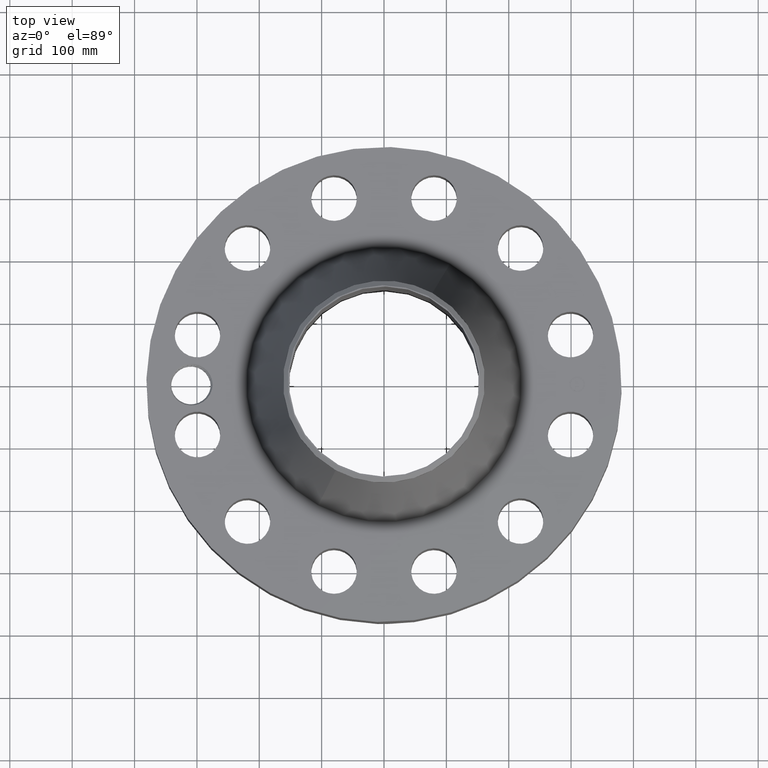
[diagram: clean part render]
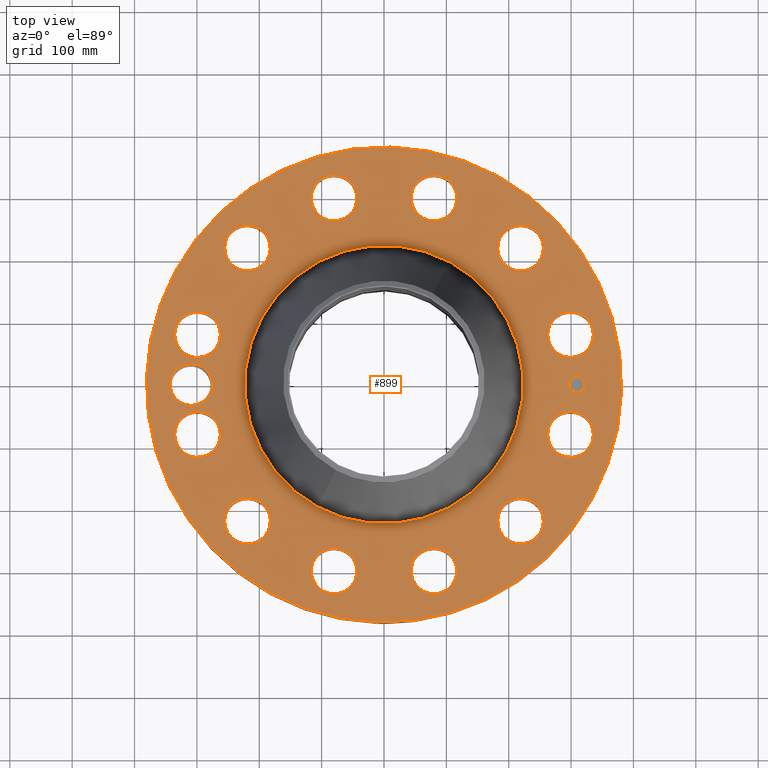
[diagram: same view with one face highlighted and labeled with its STEP entity id]
A machine part, top view. The second image highlights one B-rep face of the part: STEP entity #899.
In plain terms, the highlighted planar face has unit normal (0, 0, -1).
Its self-contained STEP definition (entity closure, byte-faithful):
#58=AXIS2_PLACEMENT_3D('Circle Axis2P3D',#56,#57,$) ;
#477=AXIS2_PLACEMENT_3D('Circle Axis2P3D',#475,#476,$) ;
#577=AXIS2_PLACEMENT_3D('Plane Axis2P3D',#574,#575,#576) ;
#631=AXIS2_PLACEMENT_3D('Circle Axis2P3D',#629,#630,$) ;
#638=AXIS2_PLACEMENT_3D('Circle Axis2P3D',#636,#637,$) ;
#649=AXIS2_PLACEMENT_3D('Circle Axis2P3D',#647,#648,$) ;
#658=AXIS2_PLACEMENT_3D('Circle Axis2P3D',#656,#657,$) ;
#667=AXIS2_PLACEMENT_3D('Circle Axis2P3D',#665,#666,$) ;
#676=AXIS2_PLACEMENT_3D('Circle Axis2P3D',#674,#675,$) ;
#685=AXIS2_PLACEMENT_3D('Circle Axis2P3D',#683,#684,$) ;
#694=AXIS2_PLACEMENT_3D('Circle Axis2P3D',#692,#693,$) ;
#703=AXIS2_PLACEMENT_3D('Circle Axis2P3D',#701,#702,$) ;
#712=AXIS2_PLACEMENT_3D('Circle Axis2P3D',#710,#711,$) ;
#721=AXIS2_PLACEMENT_3D('Circle Axis2P3D',#719,#720,$) ;
#730=AXIS2_PLACEMENT_3D('Circle Axis2P3D',#728,#729,$) ;
#739=AXIS2_PLACEMENT_3D('Circle Axis2P3D',#737,#738,$) ;
#748=AXIS2_PLACEMENT_3D('Circle Axis2P3D',#746,#747,$) ;
#757=AXIS2_PLACEMENT_3D('Circle Axis2P3D',#755,#756,$) ;
#766=AXIS2_PLACEMENT_3D('Circle Axis2P3D',#764,#765,$) ;
#775=AXIS2_PLACEMENT_3D('Circle Axis2P3D',#773,#774,$) ;
#784=AXIS2_PLACEMENT_3D('Circle Axis2P3D',#782,#783,$) ;
#793=AXIS2_PLACEMENT_3D('Circle Axis2P3D',#791,#792,$) ;
#802=AXIS2_PLACEMENT_3D('Circle Axis2P3D',#800,#801,$) ;
#811=AXIS2_PLACEMENT_3D('Circle Axis2P3D',#809,#810,$) ;
#820=AXIS2_PLACEMENT_3D('Circle Axis2P3D',#818,#819,$) ;
#829=AXIS2_PLACEMENT_3D('Circle Axis2P3D',#827,#828,$) ;
#838=AXIS2_PLACEMENT_3D('Circle Axis2P3D',#836,#837,$) ;
#847=AXIS2_PLACEMENT_3D('Circle Axis2P3D',#845,#846,$) ;
#856=AXIS2_PLACEMENT_3D('Circle Axis2P3D',#854,#855,$) ;
#865=AXIS2_PLACEMENT_3D('Circle Axis2P3D',#863,#864,$) ;
#874=AXIS2_PLACEMENT_3D('Circle Axis2P3D',#872,#873,$) ;
#883=AXIS2_PLACEMENT_3D('Circle Axis2P3D',#881,#882,$) ;
#892=AXIS2_PLACEMENT_3D('Circle Axis2P3D',#890,#891,$) ;
#53=CARTESIAN_POINT('Vertex',(-7.19138307909,-13.1637384284,7.50000000003)) ;
#56=CARTESIAN_POINT('Axis2P3D Location',(0.,0.,7.50000000003)) ;
#60=CARTESIAN_POINT('Vertex',(7.19138307909,13.1637384284,7.50000000003)) ;
#475=CARTESIAN_POINT('Axis2P3D Location',(0.,0.,7.50000000003)) ;
#574=CARTESIAN_POINT('Axis2P3D Location',(0.,15.0000000001,7.50000000003)) ;
#584=CARTESIAN_POINT('Control Point',(-10.815,0.,7.50000000003)) ;
#585=CARTESIAN_POINT('Control Point',(-10.8181043886,0.106387664949,7.50000000003)) ;
#586=CARTESIAN_POINT('Control Point',(-10.8315027177,0.212331931021,7.50000000003)) ;
#587=CARTESIAN_POINT('Control Point',(-10.8551378903,0.316486348983,7.50000000003)) ;
#588=CARTESIAN_POINT('Control Point',(-10.9222404971,0.518595759049,7.50000000003)) ;
#589=CARTESIAN_POINT('Control Point',(-11.0267484141,0.703411024127,7.50000000003)) ;
#590=CARTESIAN_POINT('Control Point',(-11.087804617,0.790300602224,7.50000000003)) ;
#591=CARTESIAN_POINT('Control Point',(-11.225885257,0.950788052232,7.50000000003)) ;
#592=CARTESIAN_POINT('Control Point',(-11.3920140791,1.08108905008,7.50000000003)) ;
#593=CARTESIAN_POINT('Control Point',(-11.4811059879,1.13777676514,7.50000000003)) ;
#594=CARTESIAN_POINT('Control Point',(-11.6421466671,1.21918718611,7.50000000003)) ;
#595=CARTESIAN_POINT('Control Point',(-11.8137655454,1.27221198225,7.50000000003)) ;
#596=CARTESIAN_POINT('Control Point',(-11.8866300375,1.28920176067,7.50000000003)) ;
#597=CARTESIAN_POINT('Control Point',(-12.0041539219,1.30797279936,7.50000000003)) ;
#598=CARTESIAN_POINT('Control Point',(-12.1226331406,1.31342384394,7.50000000003)) ;
#599=CARTESIAN_POINT('Control Point',(-12.166798905,1.31359865779,7.50000000003)) ;
#600=CARTESIAN_POINT('Control Point',(-12.2108866702,1.31191939031,7.50000000003)) ;
#601=CARTESIAN_POINT('Control Point',(-12.254792488,1.30839670342,7.50000000003)) ;
#602=CARTESIAN_POINT('Vertex',(-10.815,0.,7.50000000003)) ;
#604=CARTESIAN_POINT('Vertex',(-12.254792488,1.30839670342,7.50000000003)) ;
#608=CARTESIAN_POINT('Control Point',(-10.815,0.,7.50000000003)) ;
#609=CARTESIAN_POINT('Control Point',(-10.8181047717,-0.106400796833,7.50000000003)) ;
#610=CARTESIAN_POINT('Control Point',(-10.8315060307,-0.212358084802,7.50000000003)) ;
#611=CARTESIAN_POINT('Control Point',(-10.8551411697,-0.316512098368,7.50000000003)) ;
#612=CARTESIAN_POINT('Control Point',(-10.9222474014,-0.518634770298,7.50000000003)) ;
#613=CARTESIAN_POINT('Control Point',(-11.0267337317,-0.703405361117,7.50000000003)) ;
#614=CARTESIAN_POINT('Control Point',(-11.0877821427,-0.790276082489,7.50000000003)) ;
#615=CARTESIAN_POINT('Control Point',(-11.2258620948,-0.950760715598,7.50000000003)) ;
#616=CARTESIAN_POINT('Control Point',(-11.3919471007,-1.08104005127,7.50000000003)) ;
#617=CARTESIAN_POINT('Control Point',(-11.4810346097,-1.13773457755,7.50000000003)) ;
#618=CARTESIAN_POINT('Control Point',(-11.6688539432,-1.23271081715,7.50000000003)) ;
#619=CARTESIAN_POINT('Control Point',(-11.8710872242,-1.28907178961,7.50000000003)) ;
#620=CARTESIAN_POINT('Control Point',(-11.9745068211,-1.30711659513,7.50000000003)) ;
#621=CARTESIAN_POINT('Control Point',(-12.0933377745,-1.31586595494,7.50000000003)) ;
#622=CARTESIAN_POINT('Control Point',(-12.2116652214,-1.31125950766,7.50000000003)) ;
#623=CARTESIAN_POINT('Control Point',(-12.2260211776,-1.31050343795,7.50000000003)) ;
#624=CARTESIAN_POINT('Control Point',(-12.240362416,-1.30955082877,7.50000000003)) ;
#625=CARTESIAN_POINT('Control Point',(-12.2546852951,-1.30840200727,7.50000000003)) ;
#626=CARTESIAN_POINT('Vertex',(-12.2546852951,-1.30840200727,7.50000000003)) ;
#629=CARTESIAN_POINT('Axis2P3D Location',(-12.19,2.23792987641E-015,7.50000000003)) ;
#633=CARTESIAN_POINT('Vertex',(-13.3396331561,0.628047455574,7.50000000003)) ;
#636=CARTESIAN_POINT('Axis2P3D Location',(-12.19,2.23792987641E-015,7.50000000003)) ;
#647=CARTESIAN_POINT('Axis2P3D Location',(11.7746358225,-3.15500415981,7.50000000003)) ;
#651=CARTESIAN_POINT('Vertex',(10.5109169334,-2.46463138422,7.50000000003)) ;
#653=CARTESIAN_POINT('Vertex',(13.0383547116,-3.84537693541,7.50000000003)) ;
#656=CARTESIAN_POINT('Axis2P3D Location',(11.7746358225,-3.15500415981,7.50000000003)) ;
#665=CARTESIAN_POINT('Axis2P3D Location',(0.,0.,7.50000000003)) ;
#669=CARTESIAN_POINT('Vertex',(-4.21247090812,-7.71087627538,7.50000000003)) ;
#671=CARTESIAN_POINT('Vertex',(4.21247090812,7.71087627538,7.50000000003)) ;
#674=CARTESIAN_POINT('Axis2P3D Location',(0.,0.,7.50000000003)) ;
#683=CARTESIAN_POINT('Axis2P3D Location',(8.6196316627,-8.6196316627,7.50000000003)) ;
#687=CARTESIAN_POINT('Vertex',(9.36885793613,-9.84937146901,7.50000000003)) ;
#689=CARTESIAN_POINT('Vertex',(7.87040538927,-7.38989185639,7.50000000003)) ;
#692=CARTESIAN_POINT('Axis2P3D Location',(8.6196316627,-8.6196316627,7.50000000003)) ;
#701=CARTESIAN_POINT('Axis2P3D Location',(3.15500415981,-11.7746358225,7.50000000003)) ;
#705=CARTESIAN_POINT('Vertex',(3.18898324263,-13.2142348715,7.50000000003)) ;
#707=CARTESIAN_POINT('Vertex',(3.12102507699,-10.3350367735,7.50000000003)) ;
#710=CARTESIAN_POINT('Axis2P3D Location',(3.15500415981,-11.7746358225,7.50000000003)) ;
#719=CARTESIAN_POINT('Axis2P3D Location',(-3.15500415981,-11.7746358225,7.50000000003)) ;
#723=CARTESIAN_POINT('Vertex',(-3.84537693541,-13.0383547116,7.50000000003)) ;
#725=CARTESIAN_POINT('Vertex',(-2.46463138422,-10.5109169334,7.50000000003)) ;
#728=CARTESIAN_POINT('Axis2P3D Location',(-3.15500415981,-11.7746358225,7.50000000003)) ;
#737=CARTESIAN_POINT('Axis2P3D Location',(-8.6196316627,-8.6196316627,7.50000000003)) ;
#741=CARTESIAN_POINT('Vertex',(-9.84937146901,-9.36885793613,7.50000000003)) ;
#743=CARTESIAN_POINT('Vertex',(-7.38989185639,-7.87040538927,7.50000000003)) ;
#746=CARTESIAN_POINT('Axis2P3D Location',(-8.6196316627,-8.6196316627,7.50000000003)) ;
#755=CARTESIAN_POINT('Axis2P3D Location',(-11.7746358225,-3.15500415981,7.50000000003)) ;
#759=CARTESIAN_POINT('Vertex',(-13.2142348715,-3.18898324263,7.50000000003)) ;
#761=CARTESIAN_POINT('Vertex',(-10.3350367735,-3.12102507699,7.50000000003)) ;
#764=CARTESIAN_POINT('Axis2P3D Location',(-11.7746358225,-3.15500415981,7.50000000003)) ;
#773=CARTESIAN_POINT('Axis2P3D Location',(-11.7746358225,3.15500415981,7.50000000003)) ;
#777=CARTESIAN_POINT('Vertex',(-13.0383547116,3.84537693541,7.50000000003)) ;
#779=CARTESIAN_POINT('Vertex',(-10.5109169334,2.46463138422,7.50000000003)) ;
#782=CARTESIAN_POINT('Axis2P3D Location',(-11.7746358225,3.15500415981,7.50000000003)) ;
#791=CARTESIAN_POINT('Axis2P3D Location',(-8.6196316627,8.6196316627,7.50000000003)) ;
#795=CARTESIAN_POINT('Vertex',(-9.36885793613,9.84937146901,7.50000000003)) ;
#797=CARTESIAN_POINT('Vertex',(-7.87040538927,7.38989185639,7.50000000003)) ;
#800=CARTESIAN_POINT('Axis2P3D Location',(-8.6196316627,8.6196316627,7.50000000003)) ;
#809=CARTESIAN_POINT('Axis2P3D Location',(-3.15500415981,11.7746358225,7.50000000003)) ;
#813=CARTESIAN_POINT('Vertex',(-3.18898324263,13.2142348715,7.50000000003)) ;
#815=CARTESIAN_POINT('Vertex',(-3.12102507699,10.3350367735,7.50000000003)) ;
#818=CARTESIAN_POINT('Axis2P3D Location',(-3.15500415981,11.7746358225,7.50000000003)) ;
#827=CARTESIAN_POINT('Axis2P3D Location',(3.15500415981,11.7746358225,7.50000000003)) ;
#831=CARTESIAN_POINT('Vertex',(3.84537693541,13.0383547116,7.50000000003)) ;
#833=CARTESIAN_POINT('Vertex',(2.46463138422,10.5109169334,7.50000000003)) ;
#836=CARTESIAN_POINT('Axis2P3D Location',(3.15500415981,11.7746358225,7.50000000003)) ;
#845=CARTESIAN_POINT('Axis2P3D Location',(8.6196316627,8.6196316627,7.50000000003)) ;
#849=CARTESIAN_POINT('Vertex',(9.84937146901,9.36885793613,7.50000000003)) ;
#851=CARTESIAN_POINT('Vertex',(7.38989185639,7.87040538927,7.50000000003)) ;
#854=CARTESIAN_POINT('Axis2P3D Location',(8.6196316627,8.6196316627,7.50000000003)) ;
#863=CARTESIAN_POINT('Axis2P3D Location',(11.7746358225,3.15500415981,7.50000000003)) ;
#867=CARTESIAN_POINT('Vertex',(13.2142348715,3.18898324263,7.50000000003)) ;
#869=CARTESIAN_POINT('Vertex',(10.3350367735,3.12102507699,7.50000000003)) ;
#872=CARTESIAN_POINT('Axis2P3D Location',(11.7746358225,3.15500415981,7.50000000003)) ;
#881=CARTESIAN_POINT('Axis2P3D Location',(12.19,0.,7.50000000003)) ;
#885=CARTESIAN_POINT('Vertex',(12.19,0.499999995002,7.50000000003)) ;
#887=CARTESIAN_POINT('Vertex',(12.19,-0.499999995002,7.50000000003)) ;
#890=CARTESIAN_POINT('Axis2P3D Location',(12.19,0.,7.50000000003)) ;
#57=DIRECTION('Axis2P3D Direction',(0.,0.,-0.0393700787402)) ;
#476=DIRECTION('Axis2P3D Direction',(0.,0.,-0.0393700787402)) ;
#575=DIRECTION('Axis2P3D Direction',(0.,0.,-0.0393700787402)) ;
#576=DIRECTION('Axis2P3D XDirection',(0.0393700787402,0.,0.)) ;
#630=DIRECTION('Axis2P3D Direction',(0.,0.,-0.0393700787402)) ;
#637=DIRECTION('Axis2P3D Direction',(0.,0.,-0.0393700787402)) ;
#648=DIRECTION('Axis2P3D Direction',(0.,0.,-0.0393700787402)) ;
#657=DIRECTION('Axis2P3D Direction',(0.,0.,-0.0393700787402)) ;
#666=DIRECTION('Axis2P3D Direction',(0.,0.,-0.0393700787402)) ;
#675=DIRECTION('Axis2P3D Direction',(0.,0.,-0.0393700787402)) ;
#684=DIRECTION('Axis2P3D Direction',(0.,0.,-0.0393700787402)) ;
#693=DIRECTION('Axis2P3D Direction',(0.,0.,-0.0393700787402)) ;
#702=DIRECTION('Axis2P3D Direction',(0.,0.,-0.0393700787402)) ;
#711=DIRECTION('Axis2P3D Direction',(0.,0.,-0.0393700787402)) ;
#720=DIRECTION('Axis2P3D Direction',(0.,0.,-0.0393700787402)) ;
#729=DIRECTION('Axis2P3D Direction',(0.,0.,-0.0393700787402)) ;
#738=DIRECTION('Axis2P3D Direction',(0.,0.,-0.0393700787402)) ;
#747=DIRECTION('Axis2P3D Direction',(0.,0.,-0.0393700787402)) ;
#756=DIRECTION('Axis2P3D Direction',(0.,0.,-0.0393700787402)) ;
#765=DIRECTION('Axis2P3D Direction',(0.,0.,-0.0393700787402)) ;
#774=DIRECTION('Axis2P3D Direction',(0.,0.,-0.0393700787402)) ;
#783=DIRECTION('Axis2P3D Direction',(0.,0.,-0.0393700787402)) ;
#792=DIRECTION('Axis2P3D Direction',(0.,0.,-0.0393700787402)) ;
#801=DIRECTION('Axis2P3D Direction',(0.,0.,-0.0393700787402)) ;
#810=DIRECTION('Axis2P3D Direction',(0.,0.,-0.0393700787402)) ;
#819=DIRECTION('Axis2P3D Direction',(0.,0.,-0.0393700787402)) ;
#828=DIRECTION('Axis2P3D Direction',(0.,0.,-0.0393700787402)) ;
#837=DIRECTION('Axis2P3D Direction',(0.,0.,-0.0393700787402)) ;
#846=DIRECTION('Axis2P3D Direction',(0.,0.,-0.0393700787402)) ;
#855=DIRECTION('Axis2P3D Direction',(0.,0.,-0.0393700787402)) ;
#864=DIRECTION('Axis2P3D Direction',(0.,0.,-0.0393700787402)) ;
#873=DIRECTION('Axis2P3D Direction',(0.,0.,-0.0393700787402)) ;
#882=DIRECTION('Axis2P3D Direction',(0.,0.,-0.0393700787402)) ;
#891=DIRECTION('Axis2P3D Direction',(0.,0.,-0.0393700787402)) ;
#580=ORIENTED_EDGE('',*,*,#479,.F.) ;
#581=ORIENTED_EDGE('',*,*,#62,.F.) ;
#642=ORIENTED_EDGE('',*,*,#606,.F.) ;
#643=ORIENTED_EDGE('',*,*,#628,.T.) ;
#644=ORIENTED_EDGE('',*,*,#635,.T.) ;
#645=ORIENTED_EDGE('',*,*,#640,.T.) ;
#662=ORIENTED_EDGE('',*,*,#655,.T.) ;
#663=ORIENTED_EDGE('',*,*,#660,.T.) ;
#680=ORIENTED_EDGE('',*,*,#673,.T.) ;
#681=ORIENTED_EDGE('',*,*,#678,.T.) ;
#698=ORIENTED_EDGE('',*,*,#691,.T.) ;
#699=ORIENTED_EDGE('',*,*,#696,.T.) ;
#716=ORIENTED_EDGE('',*,*,#709,.T.) ;
#717=ORIENTED_EDGE('',*,*,#714,.T.) ;
#734=ORIENTED_EDGE('',*,*,#727,.T.) ;
#735=ORIENTED_EDGE('',*,*,#732,.T.) ;
#752=ORIENTED_EDGE('',*,*,#745,.T.) ;
#753=ORIENTED_EDGE('',*,*,#750,.T.) ;
#770=ORIENTED_EDGE('',*,*,#763,.T.) ;
#771=ORIENTED_EDGE('',*,*,#768,.T.) ;
#788=ORIENTED_EDGE('',*,*,#781,.T.) ;
#789=ORIENTED_EDGE('',*,*,#786,.T.) ;
#806=ORIENTED_EDGE('',*,*,#799,.T.) ;
#807=ORIENTED_EDGE('',*,*,#804,.T.) ;
#824=ORIENTED_EDGE('',*,*,#817,.T.) ;
#825=ORIENTED_EDGE('',*,*,#822,.T.) ;
#842=ORIENTED_EDGE('',*,*,#835,.T.) ;
#843=ORIENTED_EDGE('',*,*,#840,.T.) ;
#860=ORIENTED_EDGE('',*,*,#853,.T.) ;
#861=ORIENTED_EDGE('',*,*,#858,.T.) ;
#878=ORIENTED_EDGE('',*,*,#871,.T.) ;
#879=ORIENTED_EDGE('',*,*,#876,.T.) ;
#896=ORIENTED_EDGE('',*,*,#889,.T.) ;
#897=ORIENTED_EDGE('',*,*,#894,.T.) ;
#646=FACE_BOUND('',#641,.T.) ;
#664=FACE_BOUND('',#661,.T.) ;
#682=FACE_BOUND('',#679,.T.) ;
#700=FACE_BOUND('',#697,.T.) ;
#718=FACE_BOUND('',#715,.T.) ;
#736=FACE_BOUND('',#733,.T.) ;
#754=FACE_BOUND('',#751,.T.) ;
#772=FACE_BOUND('',#769,.T.) ;
#790=FACE_BOUND('',#787,.T.) ;
#808=FACE_BOUND('',#805,.T.) ;
#826=FACE_BOUND('',#823,.T.) ;
#844=FACE_BOUND('',#841,.T.) ;
#862=FACE_BOUND('',#859,.T.) ;
#880=FACE_BOUND('',#877,.T.) ;
#898=FACE_BOUND('',#895,.T.) ;
#899=ADVANCED_FACE('PartBody',(#582,#646,#664,#682,#700,#718,#736,#754,#772,#790,#808,#826,#844,#862,#880,#898),#578,.F.) ;
#583=B_SPLINE_CURVE_WITH_KNOTS('',5,(#584,#585,#586,#587,#588,#589,#590,#591,#592,#593,#594,#595,#596,#597,#598,#599,#600,#601),.UNSPECIFIED.,.F.,.U.,(6,3,3,3,3,6),(0.,18.6939141988,37.39355514,56.089661671,69.4369080505,77.3615944955),.UNSPECIFIED.) ;
#607=B_SPLINE_CURVE_WITH_KNOTS('',5,(#608,#609,#610,#611,#612,#613,#614,#615,#616,#617,#618,#619,#620,#621,#622,#623,#624,#625),.UNSPECIFIED.,.F.,.U.,(6,3,3,3,3,6),(0.,18.6962216678,37.4059908528,56.1238849499,74.8256383148,77.4101659834),.UNSPECIFIED.) ;
#59=CIRCLE('generated circle',#58,15.0000000001) ;
#478=CIRCLE('generated circle',#477,15.0000000001) ;
#632=CIRCLE('generated circle',#631,1.31000000001) ;
#639=CIRCLE('generated circle',#638,1.31000000001) ;
#650=CIRCLE('generated circle',#649,1.44000000001) ;
#659=CIRCLE('generated circle',#658,1.44000000001) ;
#668=CIRCLE('generated circle',#667,8.78649669015) ;
#677=CIRCLE('generated circle',#676,8.78649669015) ;
#686=CIRCLE('generated circle',#685,1.44000000001) ;
#695=CIRCLE('generated circle',#694,1.44000000001) ;
#704=CIRCLE('generated circle',#703,1.44000000001) ;
#713=CIRCLE('generated circle',#712,1.44000000001) ;
#722=CIRCLE('generated circle',#721,1.44000000001) ;
#731=CIRCLE('generated circle',#730,1.44000000001) ;
#740=CIRCLE('generated circle',#739,1.44000000001) ;
#749=CIRCLE('generated circle',#748,1.44000000001) ;
#758=CIRCLE('generated circle',#757,1.44000000001) ;
#767=CIRCLE('generated circle',#766,1.44000000001) ;
#776=CIRCLE('generated circle',#775,1.44000000001) ;
#785=CIRCLE('generated circle',#784,1.44000000001) ;
#794=CIRCLE('generated circle',#793,1.44000000001) ;
#803=CIRCLE('generated circle',#802,1.44000000001) ;
#812=CIRCLE('generated circle',#811,1.44000000001) ;
#821=CIRCLE('generated circle',#820,1.44000000001) ;
#830=CIRCLE('generated circle',#829,1.44000000001) ;
#839=CIRCLE('generated circle',#838,1.44000000001) ;
#848=CIRCLE('generated circle',#847,1.44000000001) ;
#857=CIRCLE('generated circle',#856,1.44000000001) ;
#866=CIRCLE('generated circle',#865,1.44000000001) ;
#875=CIRCLE('generated circle',#874,1.44000000001) ;
#884=CIRCLE('generated circle',#883,0.499999995002) ;
#893=CIRCLE('generated circle',#892,0.499999995002) ;
#62=EDGE_CURVE('',#54,#61,#59,.T.) ;
#479=EDGE_CURVE('',#61,#54,#478,.T.) ;
#606=EDGE_CURVE('',#603,#605,#583,.T.) ;
#628=EDGE_CURVE('',#603,#627,#607,.T.) ;
#635=EDGE_CURVE('',#627,#634,#632,.T.) ;
#640=EDGE_CURVE('',#634,#605,#639,.T.) ;
#655=EDGE_CURVE('',#652,#654,#650,.T.) ;
#660=EDGE_CURVE('',#654,#652,#659,.T.) ;
#673=EDGE_CURVE('',#670,#672,#668,.T.) ;
#678=EDGE_CURVE('',#672,#670,#677,.T.) ;
#691=EDGE_CURVE('',#688,#690,#686,.T.) ;
#696=EDGE_CURVE('',#690,#688,#695,.T.) ;
#709=EDGE_CURVE('',#706,#708,#704,.T.) ;
#714=EDGE_CURVE('',#708,#706,#713,.T.) ;
#727=EDGE_CURVE('',#724,#726,#722,.T.) ;
#732=EDGE_CURVE('',#726,#724,#731,.T.) ;
#745=EDGE_CURVE('',#742,#744,#740,.T.) ;
#750=EDGE_CURVE('',#744,#742,#749,.T.) ;
#763=EDGE_CURVE('',#760,#762,#758,.T.) ;
#768=EDGE_CURVE('',#762,#760,#767,.T.) ;
#781=EDGE_CURVE('',#778,#780,#776,.T.) ;
#786=EDGE_CURVE('',#780,#778,#785,.T.) ;
#799=EDGE_CURVE('',#796,#798,#794,.T.) ;
#804=EDGE_CURVE('',#798,#796,#803,.T.) ;
#817=EDGE_CURVE('',#814,#816,#812,.T.) ;
#822=EDGE_CURVE('',#816,#814,#821,.T.) ;
#835=EDGE_CURVE('',#832,#834,#830,.T.) ;
#840=EDGE_CURVE('',#834,#832,#839,.T.) ;
#853=EDGE_CURVE('',#850,#852,#848,.T.) ;
#858=EDGE_CURVE('',#852,#850,#857,.T.) ;
#871=EDGE_CURVE('',#868,#870,#866,.T.) ;
#876=EDGE_CURVE('',#870,#868,#875,.T.) ;
#889=EDGE_CURVE('',#886,#888,#884,.T.) ;
#894=EDGE_CURVE('',#888,#886,#893,.T.) ;
#579=EDGE_LOOP('',(#580,#581)) ;
#641=EDGE_LOOP('',(#642,#643,#644,#645)) ;
#661=EDGE_LOOP('',(#662,#663)) ;
#679=EDGE_LOOP('',(#680,#681)) ;
#697=EDGE_LOOP('',(#698,#699)) ;
#715=EDGE_LOOP('',(#716,#717)) ;
#733=EDGE_LOOP('',(#734,#735)) ;
#751=EDGE_LOOP('',(#752,#753)) ;
#769=EDGE_LOOP('',(#770,#771)) ;
#787=EDGE_LOOP('',(#788,#789)) ;
#805=EDGE_LOOP('',(#806,#807)) ;
#823=EDGE_LOOP('',(#824,#825)) ;
#841=EDGE_LOOP('',(#842,#843)) ;
#859=EDGE_LOOP('',(#860,#861)) ;
#877=EDGE_LOOP('',(#878,#879)) ;
#895=EDGE_LOOP('',(#896,#897)) ;
#582=FACE_OUTER_BOUND('',#579,.T.) ;
#578=PLANE('',#577) ;
#54=VERTEX_POINT('',#53) ;
#61=VERTEX_POINT('',#60) ;
#603=VERTEX_POINT('',#602) ;
#605=VERTEX_POINT('',#604) ;
#627=VERTEX_POINT('',#626) ;
#634=VERTEX_POINT('',#633) ;
#652=VERTEX_POINT('',#651) ;
#654=VERTEX_POINT('',#653) ;
#670=VERTEX_POINT('',#669) ;
#672=VERTEX_POINT('',#671) ;
#688=VERTEX_POINT('',#687) ;
#690=VERTEX_POINT('',#689) ;
#706=VERTEX_POINT('',#705) ;
#708=VERTEX_POINT('',#707) ;
#724=VERTEX_POINT('',#723) ;
#726=VERTEX_POINT('',#725) ;
#742=VERTEX_POINT('',#741) ;
#744=VERTEX_POINT('',#743) ;
#760=VERTEX_POINT('',#759) ;
#762=VERTEX_POINT('',#761) ;
#778=VERTEX_POINT('',#777) ;
#780=VERTEX_POINT('',#779) ;
#796=VERTEX_POINT('',#795) ;
#798=VERTEX_POINT('',#797) ;
#814=VERTEX_POINT('',#813) ;
#816=VERTEX_POINT('',#815) ;
#832=VERTEX_POINT('',#831) ;
#834=VERTEX_POINT('',#833) ;
#850=VERTEX_POINT('',#849) ;
#852=VERTEX_POINT('',#851) ;
#868=VERTEX_POINT('',#867) ;
#870=VERTEX_POINT('',#869) ;
#886=VERTEX_POINT('',#885) ;
#888=VERTEX_POINT('',#887) ;